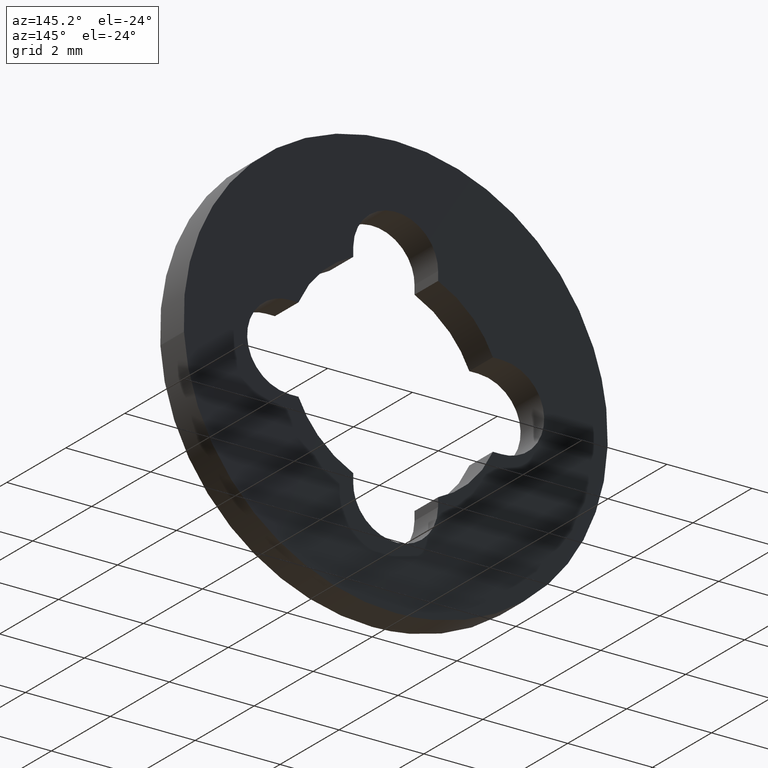
[diagram: clean part render]
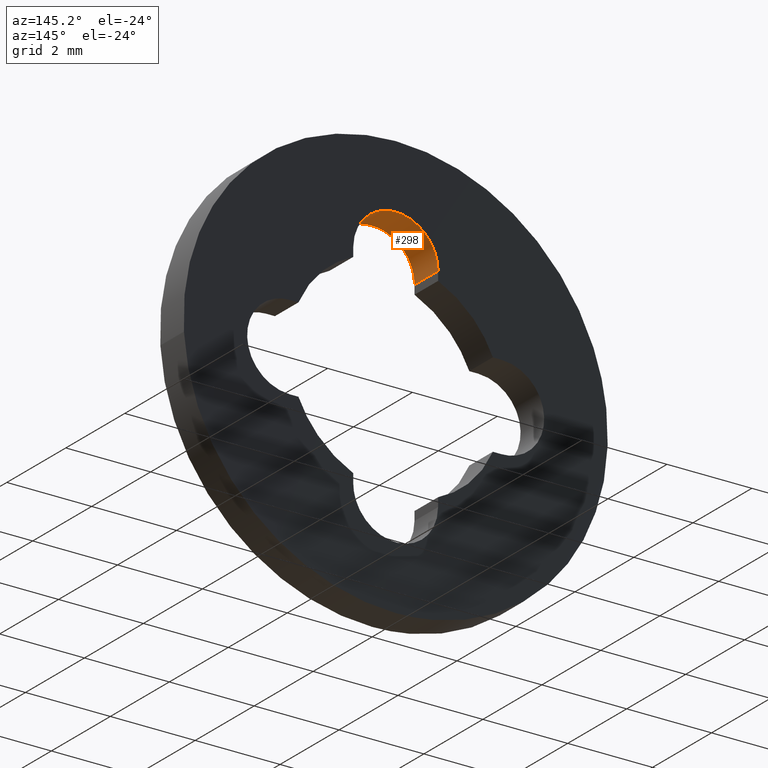
[diagram: same view with one face highlighted and labeled with its STEP entity id]
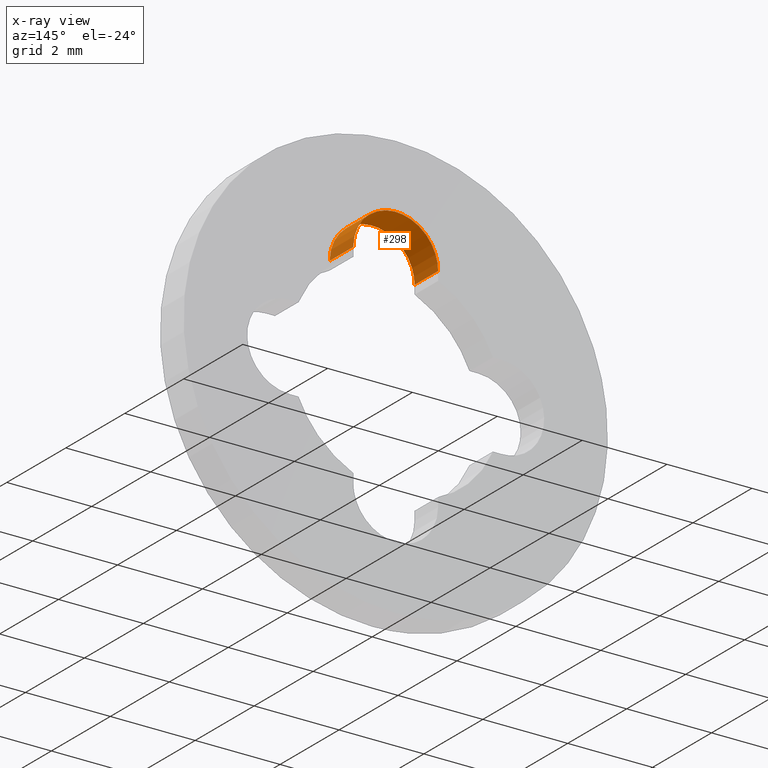
[diagram: x-ray of the same camera — body ghosted, the highlighted face saturated]
A machine part, auxiliary view. The second image highlights one B-rep face of the part: STEP entity #298.
The next image is the same camera in x-ray: the body ghosted, the highlighted face saturated — about 0% of this face is hidden behind the body in this view.
In plain terms, the highlighted face is a freeform B-spline surface patch.
Its self-contained STEP definition (entity closure, byte-faithful):
#230=CARTESIAN_POINT('',(-0.999657324975557,0.820000000000024,2.473823051692126));
#231=CARTESIAN_POINT('',(-0.999657324975557,-0.020500000000001,2.473823051692126));
#232=CARTESIAN_POINT('',(-1.027242072842902,0.820000000000023,3.527242072842900));
#233=CARTESIAN_POINT('',(-1.027242072842902,-0.020500000000001,3.527242072842900));
#234=CARTESIAN_POINT('',(0.026176948307872,0.820000000000024,3.499657324975557));
#235=CARTESIAN_POINT('',(0.026176948307872,-0.020500000000001,3.499657324975557));
#236=CARTESIAN_POINT('',(1.079595969458647,0.820000000000023,3.472072577108215));
#237=CARTESIAN_POINT('',(1.079595969458647,-0.020500000000001,3.472072577108215));
#238=CARTESIAN_POINT('',(0.996917333733128,0.820000000000024,2.421540904272156));
#239=CARTESIAN_POINT('',(0.996917333733128,-0.020500000000001,2.421540904272156));
#247=(BOUNDED_SURFACE()B_SPLINE_SURFACE(1,2,((#230,#232,#234,#236,#238),(#231,#233,#235,#237,#239)),.UNSPECIFIED.,.F.,.F.,.U.)B_SPLINE_SURFACE_WITH_KNOTS((2,2),(3,2,3),(0.0,1.0),(0.0,1.0,2.0),.UNSPECIFIED.)GEOMETRIC_REPRESENTATION_ITEM()RATIONAL_B_SPLINE_SURFACE(((1.0,0.688354575693754,1.0,0.688354575693754,1.0),(1.0,0.688354575693754,1.0,0.688354575693754,1.0)))REPRESENTATION_ITEM('')SURFACE());
#248=CARTESIAN_POINT('',(1.0,0.0,2.500000000000000));
#249=VERTEX_POINT('',#248);
#250=CARTESIAN_POINT('',(-1.0,0.0,2.500000000000000));
#251=VERTEX_POINT('',#250);
#252=CARTESIAN_POINT('',(1.0,0.0,2.500000000000000));
#253=CARTESIAN_POINT('',(1.0,0.0,3.499999999999999));
#254=CARTESIAN_POINT('',(0.0,0.0,3.500000000000000));
#255=CARTESIAN_POINT('',(-1.0,0.0,3.499999999999999));
#256=CARTESIAN_POINT('',(-1.0,0.0,2.500000000000000));
#264=(BOUNDED_CURVE()B_SPLINE_CURVE(2,(#252,#253,#254,#255,#256),.UNSPECIFIED.,.F.,.U.)B_SPLINE_CURVE_WITH_KNOTS((3,2,3),(0.0,0.500000000000000,1.0),.UNSPECIFIED.)CURVE()GEOMETRIC_REPRESENTATION_ITEM()RATIONAL_B_SPLINE_CURVE((1.0,0.707106781186548,1.0,0.707106781186548,1.0))REPRESENTATION_ITEM(''));
#265=EDGE_CURVE('',#249,#251,#264,.T.);
#266=ORIENTED_EDGE('',*,*,#265,.T.);
#267=CARTESIAN_POINT('',(-1.0,0.800000000000023,2.500000000000000));
#268=VERTEX_POINT('',#267);
#269=CARTESIAN_POINT('',(-1.0,0.800000000000023,2.500000000000000));
#270=CARTESIAN_POINT('',(-1.0,0.0,2.500000000000000));
#271=QUASI_UNIFORM_CURVE('',1,(#269,#270),.UNSPECIFIED.,.F.,.U.);
#272=EDGE_CURVE('',#268,#251,#271,.T.);
#273=ORIENTED_EDGE('',*,*,#272,.F.);
#274=CARTESIAN_POINT('',(1.0,0.800000000000023,2.500000000000000));
#275=VERTEX_POINT('',#274);
#276=CARTESIAN_POINT('',(1.0,0.800000000000023,2.500000000000000));
#277=CARTESIAN_POINT('',(1.0,0.800000000000023,3.499999999999999));
#278=CARTESIAN_POINT('',(0.0,0.800000000000023,3.500000000000000));
#279=CARTESIAN_POINT('',(-1.0,0.800000000000023,3.499999999999999));
#280=CARTESIAN_POINT('',(-1.0,0.800000000000023,2.500000000000000));
#288=(BOUNDED_CURVE()B_SPLINE_CURVE(2,(#276,#277,#278,#279,#280),.UNSPECIFIED.,.F.,.U.)B_SPLINE_CURVE_WITH_KNOTS((3,2,3),(0.0,0.500000000000000,1.0),.UNSPECIFIED.)CURVE()GEOMETRIC_REPRESENTATION_ITEM()RATIONAL_B_SPLINE_CURVE((1.0,0.707106781186548,1.0,0.707106781186548,1.0))REPRESENTATION_ITEM(''));
#289=EDGE_CURVE('',#275,#268,#288,.T.);
#290=ORIENTED_EDGE('',*,*,#289,.F.);
#291=CARTESIAN_POINT('',(1.0,0.800000000000023,2.500000000000000));
#292=CARTESIAN_POINT('',(1.0,0.0,2.500000000000000));
#293=QUASI_UNIFORM_CURVE('',1,(#291,#292),.UNSPECIFIED.,.F.,.U.);
#294=EDGE_CURVE('',#275,#249,#293,.T.);
#295=ORIENTED_EDGE('',*,*,#294,.T.);
#296=EDGE_LOOP('',(#266,#273,#290,#295));
#297=FACE_OUTER_BOUND('',#296,.T.);
#298=ADVANCED_FACE('',(#297),#247,.F.);